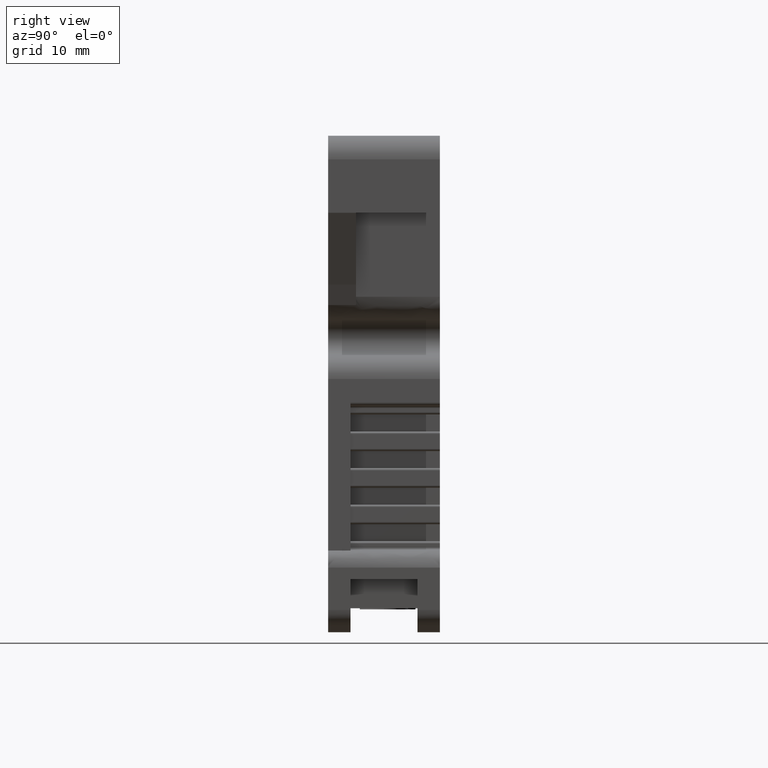
[diagram: clean part render]
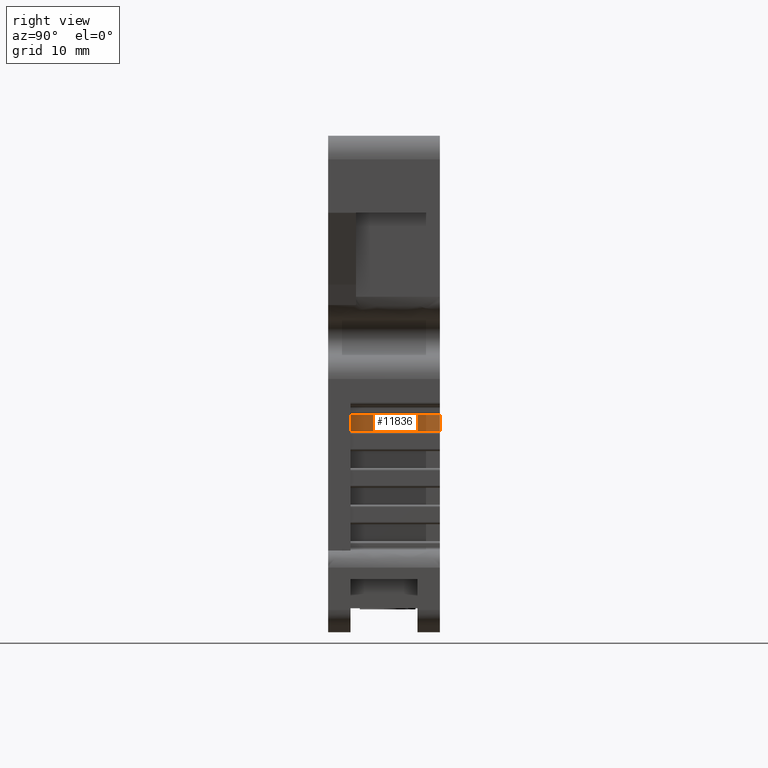
[diagram: same view with one face highlighted and labeled with its STEP entity id]
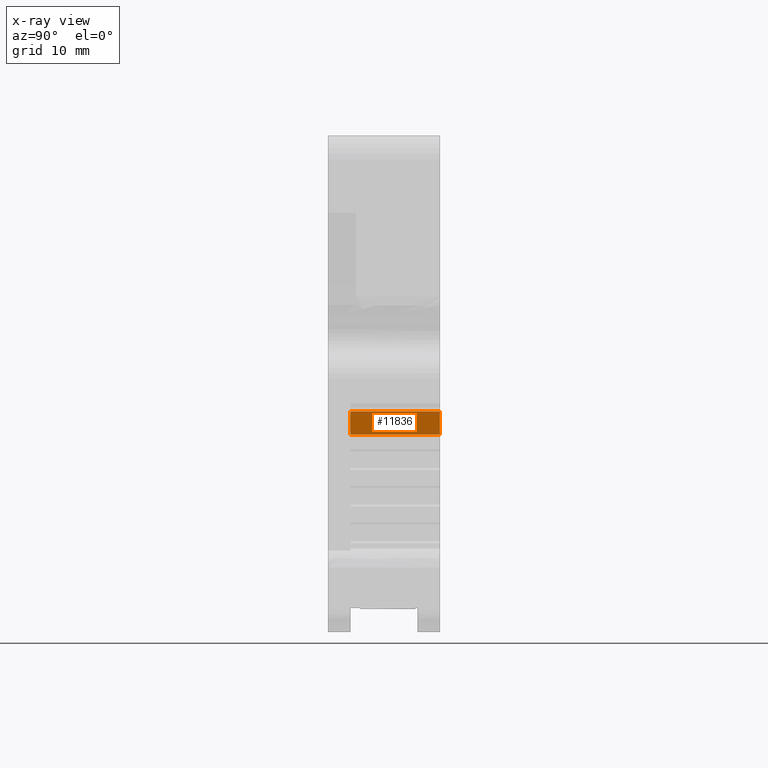
[diagram: x-ray of the same camera — body ghosted, the highlighted face saturated]
A machine part, right view. The second image highlights one B-rep face of the part: STEP entity #11836.
The next image is the same camera in x-ray: the body ghosted, the highlighted face saturated — about 0% of this face is hidden behind the body in this view.
In plain terms, the highlighted planar face has unit normal (1, -0, 0).
Its self-contained STEP definition (entity closure, byte-faithful):
#2291 = EDGE_CURVE ( 'NONE', #11320, #11329, #12426, .T. ) ;
#2310 = EDGE_CURVE ( 'NONE', #11366, #11350, #12452, .T. ) ;
#3151 = DIRECTION ( 'NONE',  ( -0.0000000000000000000, -0.0000000000000000000, 1.000000000000000000 ) ) ;
#3169 = CARTESIAN_POINT ( 'NONE',  ( 18.35512562227523500, -0.1012443920222205800, 0.4657173789986578400 ) ) ;
#3194 = LINE ( 'NONE', #3169, #4813 ) ;
#4657 = VECTOR ( 'NONE', #12430, 1000.000000000000000 ) ;
#4706 = VECTOR ( 'NONE', #12491, 1000.000000000000000 ) ;
#4813 = VECTOR ( 'NONE', #3151, 1000.000000000000000 ) ;
#5002 = EDGE_CURVE ( 'NONE', #11509, #11320, #3194, .T. ) ;
#5532 = EDGE_LOOP ( 'NONE', ( #9917, #9918, #9900, #9891, #9898 ) ) ;
#6057 = CARTESIAN_POINT ( 'NONE',  ( 18.35512562227523500, -59.88818575177261000, 0.4657173789986578400 ) ) ;
#6059 = DIRECTION ( 'NONE',  ( 0.0000000000000000000, 0.0000000000000000000, -1.000000000000000000 ) ) ;
#6076 = FACE_OUTER_BOUND ( 'NONE', #5532, .T. ) ;
#6086 = DIRECTION ( 'NONE',  ( 1.000000000000000000, -0.0000000000000000000, 0.0000000000000000000 ) ) ;
#6768 = CARTESIAN_POINT ( 'NONE',  ( 18.35512562225218900, -7.941244392004303900, 15.60628824531282700 ) ) ;
#6777 = CARTESIAN_POINT ( 'NONE',  ( 18.35512562225922300, -0.1012443920222232300, 15.60628824532360400 ) ) ;
#6818 = CARTESIAN_POINT ( 'NONE',  ( 18.35512562225626700, -7.941244392004303900, 13.57170467495043900 ) ) ;
#6843 = CARTESIAN_POINT ( 'NONE',  ( 18.35512562225272900, -0.6012443920222214600, 13.57170467498195700 ) ) ;
#6979 = CARTESIAN_POINT ( 'NONE',  ( 18.35512562227523500, -0.1012443920222205800, 13.57170467495528700 ) ) ;
#7226 = PLANE ( 'NONE',  #10150 ) ;
#8046 = CARTESIAN_POINT ( 'NONE',  ( 18.35512562227523500, -59.88818575177261000, 13.57170467495528700 ) ) ;
#8068 = DIRECTION ( 'NONE',  ( 0.0000000000000000000, 1.000000000000000000, 0.0000000000000000000 ) ) ;
#8071 = LINE ( 'NONE', #8046, #10507 ) ;
#8143 = LINE ( 'NONE', #8171, #10504 ) ;
#8154 = DIRECTION ( 'NONE',  ( 0.0000000000000000000, -0.0000000000000000000, -1.000000000000000000 ) ) ;
#8171 = CARTESIAN_POINT ( 'NONE',  ( 18.35512562226074700, -7.941244392004303900, 16.08886907158200700 ) ) ;
#9891 = ORIENTED_EDGE ( 'NONE', *, *, #14156, .T. ) ;
#9898 = ORIENTED_EDGE ( 'NONE', *, *, #2310, .T. ) ;
#9900 = ORIENTED_EDGE ( 'NONE', *, *, #2291, .T. ) ;
#9917 = ORIENTED_EDGE ( 'NONE', *, *, #14131, .T. ) ;
#9918 = ORIENTED_EDGE ( 'NONE', *, *, #5002, .T. ) ;
#10150 = AXIS2_PLACEMENT_3D ( 'NONE', #6057, #6086, #6059 ) ;
#10504 = VECTOR ( 'NONE', #8154, 1000.000000000000000 ) ;
#10507 = VECTOR ( 'NONE', #8068, 1000.000000000000000 ) ;
#11320 = VERTEX_POINT ( 'NONE', #6777 ) ;
#11329 = VERTEX_POINT ( 'NONE', #6768 ) ;
#11350 = VERTEX_POINT ( 'NONE', #6843 ) ;
#11366 = VERTEX_POINT ( 'NONE', #6818 ) ;
#11509 = VERTEX_POINT ( 'NONE', #6979 ) ;
#11836 = ADVANCED_FACE ( 'NONE', ( #6076 ), #7226, .T. ) ;
#12426 = LINE ( 'NONE', #12432, #4657 ) ;
#12430 = DIRECTION ( 'NONE',  ( -0.0000000000000000000, -1.000000000000000000, -0.0000000000000000000 ) ) ;
#12432 = CARTESIAN_POINT ( 'NONE',  ( 18.35512562227523500, -59.88818575177261000, 15.60628824535590200 ) ) ;
#12452 = LINE ( 'NONE', #12468, #4706 ) ;
#12468 = CARTESIAN_POINT ( 'NONE',  ( 18.35512562227523500, -59.88818575177261000, 13.57170467491973100 ) ) ;
#12491 = DIRECTION ( 'NONE',  ( 0.0000000000000000000, 1.000000000000000000, 0.0000000000000000000 ) ) ;
#14131 = EDGE_CURVE ( 'NONE', #11350, #11509, #8071, .T. ) ;
#14156 = EDGE_CURVE ( 'NONE', #11329, #11366, #8143, .T. ) ;